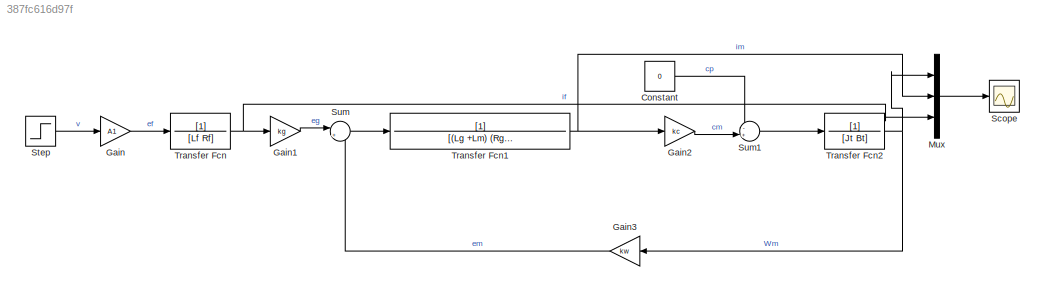
MODEL slx_387fc616d97f
KIND model
BLOCK [Constant] Constant
  Value = 0
BLOCK [Gain] Gain
  Gain = A1
  OutDataTypeStr = Inherit: Inherit via internal rule
  ParamDataTypeStr = Inherit: Inherit via internal rule
  SaturateOnIntegerOverflow = off
BLOCK [Gain] Gain1
  Gain = kg
  OutDataTypeStr = Inherit: Inherit via internal rule
  ParamDataTypeStr = Inherit: Inherit via internal rule
  SaturateOnIntegerOverflow = off
BLOCK [Gain] Gain2
  Gain = kc
  OutDataTypeStr = Inherit: Inherit via internal rule
  ParamDataTypeStr = Inherit: Inherit via internal rule
  SaturateOnIntegerOverflow = off
BLOCK [Gain] Gain3
  Gain = kw
  OutDataTypeStr = Inherit: Inherit via internal rule
  ParamDataTypeStr = Inherit: Inherit via internal rule
  SaturateOnIntegerOverflow = off
BLOCK [Mux] Mux
  DisplayOption = bar
  Inputs = 3
  Ports = [3, 1]
BLOCK [Scope] Scope
  Floating = off
  NumInputPorts = 1
  Ports = [1]
  SampleTime = 0
  SaveName = ScopeDataB
  SaveToWorkspace = on
  ShowLegends = off
BLOCK [Step] Step
  After = 100
  SampleTime = 0
  Time = 0
BLOCK [Sum] Sum
  IconShape = round
  InputSameDT = off
  Inputs = |+-
  OutDataTypeStr = Inherit: Inherit via internal rule
  Ports = [2, 1]
  SaturateOnIntegerOverflow = off
BLOCK [Sum] Sum1
  IconShape = round
  InputSameDT = off
  Inputs = -+|
  OutDataTypeStr = Inherit: Inherit via internal rule
  Ports = [2, 1]
  SaturateOnIntegerOverflow = off
BLOCK [TransferFcn] Transfer Fcn
  Denominator = [Lf Rf]
BLOCK [TransferFcn] Transfer Fcn1
  Denominator = [(Lg +Lm) (Rg + Rm)]
BLOCK [TransferFcn] Transfer Fcn2
  Denominator = [Jt Bt]
LINE Constant:1 -> Sum1:1
LINE Gain1:1 -> Sum:1
LINE Gain2:1 -> Sum1:2
LINE Gain3:1 -> Sum:2
LINE Gain:1 -> Transfer Fcn:1
LINE Mux:1 -> Scope:1
LINE Step:1 -> Gain:1
LINE Sum1:1 -> Transfer Fcn2:1
LINE Sum:1 -> Transfer Fcn1:1
NET Transfer Fcn1:1 -> Gain2:1, Mux:2
NET Transfer Fcn2:1 -> Gain3:1, Mux:1
NET Transfer Fcn:1 -> Gain1:1, Mux:3
note: NET lines group one-source signal fan-out (src -> all destinations, sorted); 1:1 wires keep LINE
